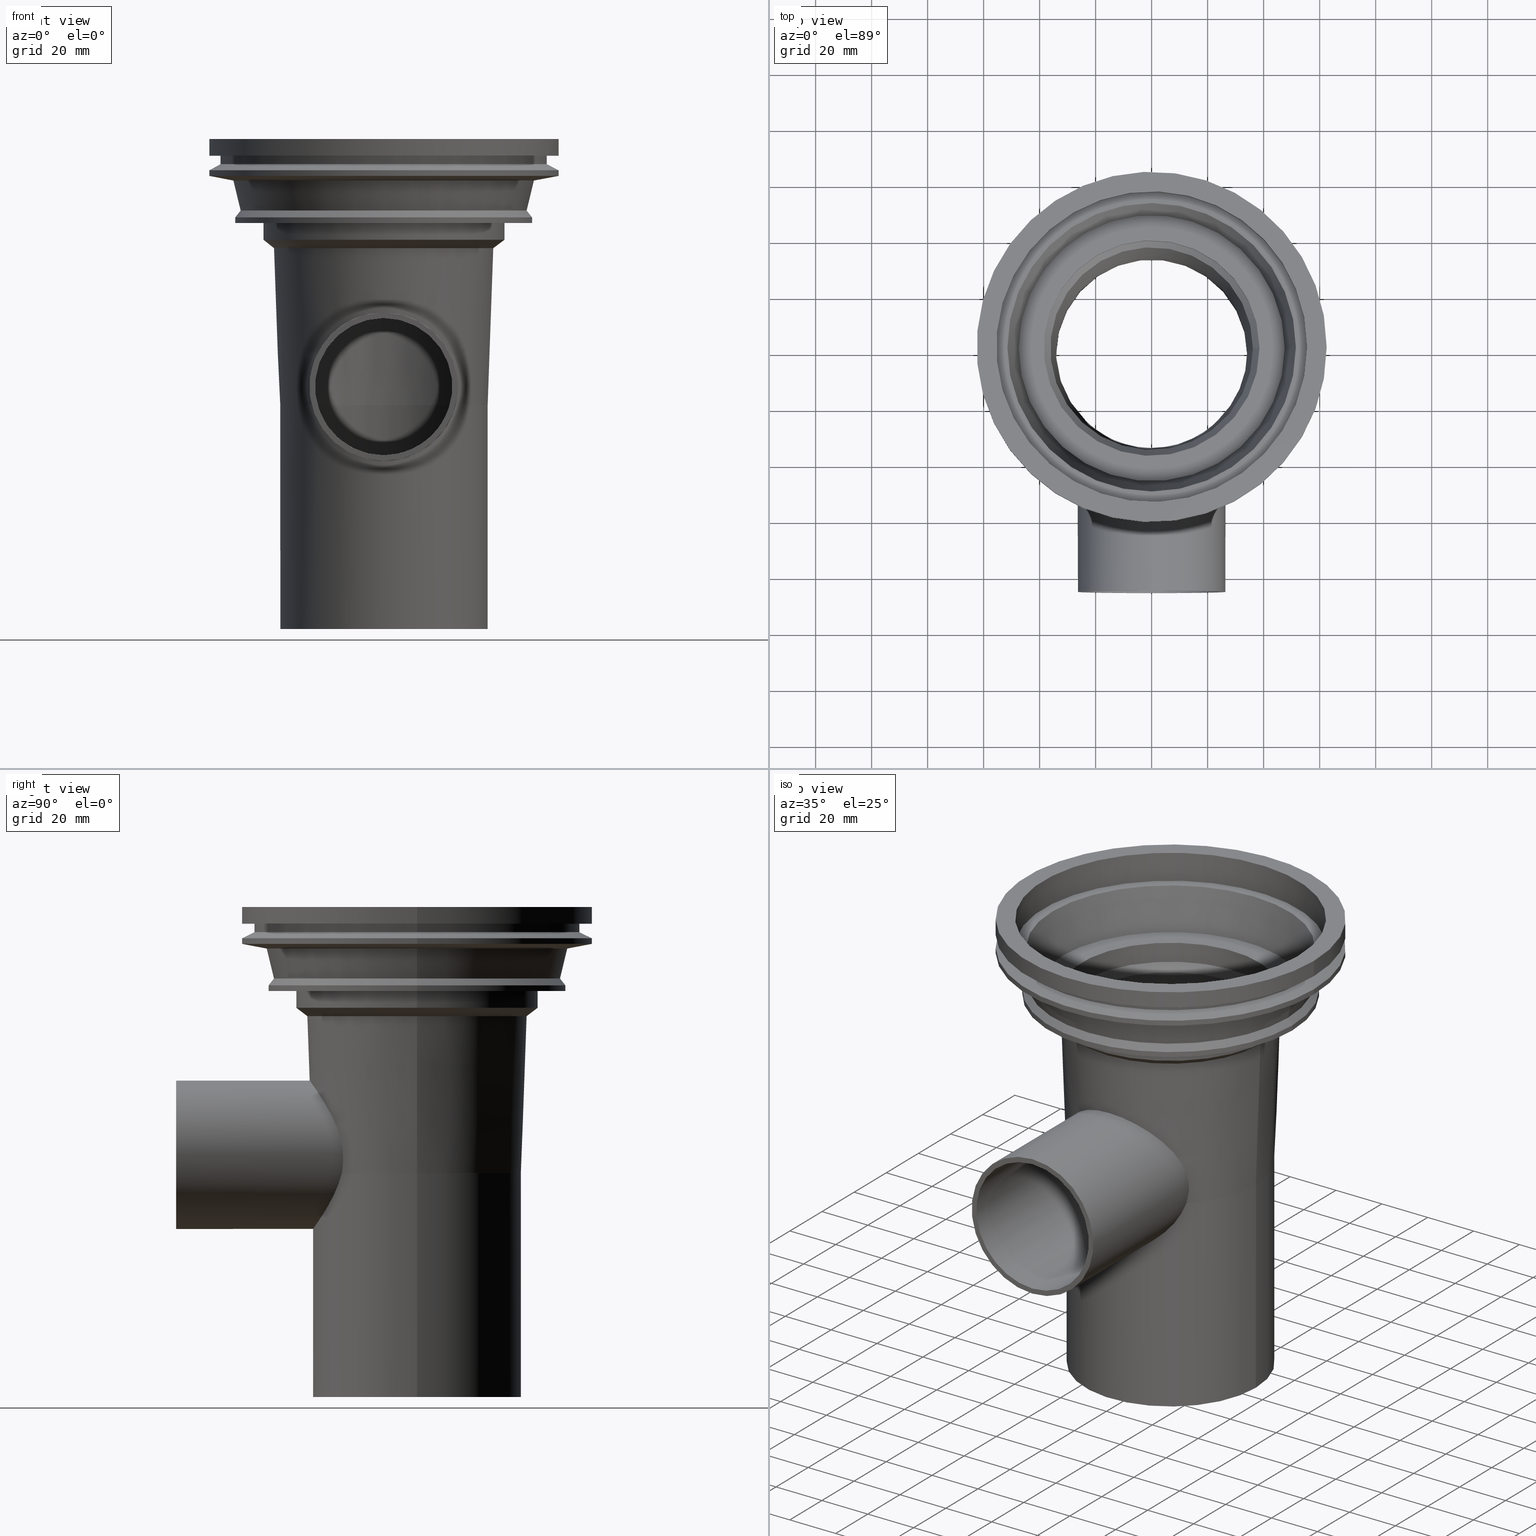
[diagram: canonical four-view strip — front | top / right | iso, engineering-drawing reading convention]
A machine part, canonical four-view strip (front | top / right | iso — engineering-drawing reading convention). The complete STEP part file that produces these views, byte-faithful:
ISO-10303-21;
HEADER;
/* Generated by software containing ST-Developer
 * from STEP Tools, Inc. (www.steptools.com) 
 */
/* OPTION: using custom renumber hook */

FILE_DESCRIPTION(
/* description */ ('STEP AP214'),
/* implementation_level */ '2;1');

FILE_NAME(
/* name */ '482088001(1)',
/* time_stamp */ '2022-12-23T08:20:45+01:00',
/* author */ ('License CC BY-ND 4.0'),
/* organization */ ('CADENAS'),
/* preprocessor_version */ 'ST-DEVELOPER v18.102',
/* originating_system */ 'PARTsolutions',
/* authorisation */ '  ');

FILE_SCHEMA (('AUTOMOTIVE_DESIGN {1 0 10303 214 3 1 1}'));
ENDSEC;

DATA;
#10=PROPERTY_DEFINITION_REPRESENTATION(#14,#12);
#11=PROPERTY_DEFINITION_REPRESENTATION(#15,#13);
#12=REPRESENTATION('',(#16),#684);
#13=REPRESENTATION('',(#17),#684);
#14=PROPERTY_DEFINITION('pmi validation property','',#689);
#15=PROPERTY_DEFINITION('pmi validation property','',#689);
#16=VALUE_REPRESENTATION_ITEM('number of annotations',COUNT_MEASURE(0.));
#17=VALUE_REPRESENTATION_ITEM('number of views',COUNT_MEASURE(0.));
#18=SHAPE_REPRESENTATION_RELATIONSHIP('','',#341,#19);
#19=ADVANCED_BREP_SHAPE_REPRESENTATION('',(#339),#684);
#20=PLANE('',#359);
#21=PLANE('',#363);
#22=PLANE('',#367);
#23=PLANE('',#371);
#24=PLANE('',#387);
#25=PLANE('',#392);
#26=PLANE('',#395);
#27=CONICAL_SURFACE('',#348,34.143,0.0357094364958043);
#28=CONICAL_SURFACE('',#350,39.143539336086,0.0357094364958043);
#29=CONICAL_SURFACE('',#355,36.1757550315357,0.643502895210308);
#30=CONICAL_SURFACE('',#361,47.4999181723626,0.237521857903909);
#31=CONICAL_SURFACE('',#375,58.252,1.09597950378984);
#32=CONICAL_SURFACE('',#379,62.5,1.3848314949949);
#33=CONICAL_SURFACE('',#381,53.6550744100284,0.237521857903908);
#34=CONICAL_SURFACE('',#383,51.0668891155031,0.665808203050796);
#35=CONICAL_SURFACE('',#391,43.145,0.927293431584588);
#36=CIRCLE('',#344,24.5);
#37=CIRCLE('',#346,34.143);
#38=CIRCLE('',#347,34.143);
#39=CIRCLE('',#349,36.1757550315357);
#40=CIRCLE('',#351,37.143);
#41=CIRCLE('',#352,39.143539336086);
#42=CIRCLE('',#354,37.143);
#43=CIRCLE('',#356,38.505);
#44=CIRCLE('',#358,38.505);
#45=CIRCLE('',#360,47.4999181723626);
#46=CIRCLE('',#362,51.5);
#47=CIRCLE('',#364,55.5);
#48=CIRCLE('',#366,55.5);
#49=CIRCLE('',#368,62.5);
#50=CIRCLE('',#370,62.5);
#51=CIRCLE('',#372,58.252);
#52=CIRCLE('',#374,58.252);
#53=CIRCLE('',#376,62.5);
#54=CIRCLE('',#378,62.5);
#55=CIRCLE('',#380,53.6550744100284);
#56=CIRCLE('',#382,51.0668891155031);
#57=CIRCLE('',#384,53.);
#58=CIRCLE('',#386,53.);
#59=CIRCLE('',#388,43.145);
#60=CIRCLE('',#390,43.145);
#61=CIRCLE('',#394,26.5);
#62=ORIENTED_EDGE('',*,*,#122,.T.);
#63=ORIENTED_EDGE('',*,*,#123,.T.);
#64=ORIENTED_EDGE('',*,*,#124,.F.);
#65=ORIENTED_EDGE('',*,*,#123,.F.);
#66=ORIENTED_EDGE('',*,*,#125,.T.);
#67=ORIENTED_EDGE('',*,*,#126,.F.);
#68=ORIENTED_EDGE('',*,*,#127,.T.);
#69=ORIENTED_EDGE('',*,*,#125,.F.);
#70=ORIENTED_EDGE('',*,*,#122,.F.);
#71=ORIENTED_EDGE('',*,*,#128,.F.);
#72=ORIENTED_EDGE('',*,*,#129,.T.);
#73=ORIENTED_EDGE('',*,*,#130,.F.);
#74=ORIENTED_EDGE('',*,*,#131,.T.);
#75=ORIENTED_EDGE('',*,*,#132,.F.);
#76=ORIENTED_EDGE('',*,*,#129,.F.);
#77=ORIENTED_EDGE('',*,*,#133,.T.);
#78=ORIENTED_EDGE('',*,*,#127,.F.);
#79=ORIENTED_EDGE('',*,*,#134,.T.);
#80=ORIENTED_EDGE('',*,*,#133,.F.);
#81=ORIENTED_EDGE('',*,*,#135,.T.);
#82=ORIENTED_EDGE('',*,*,#134,.F.);
#83=ORIENTED_EDGE('',*,*,#136,.T.);
#84=ORIENTED_EDGE('',*,*,#135,.F.);
#85=ORIENTED_EDGE('',*,*,#137,.T.);
#86=ORIENTED_EDGE('',*,*,#136,.F.);
#87=ORIENTED_EDGE('',*,*,#138,.T.);
#88=ORIENTED_EDGE('',*,*,#137,.F.);
#89=ORIENTED_EDGE('',*,*,#139,.T.);
#90=ORIENTED_EDGE('',*,*,#138,.F.);
#91=ORIENTED_EDGE('',*,*,#140,.T.);
#92=ORIENTED_EDGE('',*,*,#139,.F.);
#93=ORIENTED_EDGE('',*,*,#141,.T.);
#94=ORIENTED_EDGE('',*,*,#140,.F.);
#95=ORIENTED_EDGE('',*,*,#142,.T.);
#96=ORIENTED_EDGE('',*,*,#141,.F.);
#97=ORIENTED_EDGE('',*,*,#143,.T.);
#98=ORIENTED_EDGE('',*,*,#142,.F.);
#99=ORIENTED_EDGE('',*,*,#144,.T.);
#100=ORIENTED_EDGE('',*,*,#143,.F.);
#101=ORIENTED_EDGE('',*,*,#145,.T.);
#102=ORIENTED_EDGE('',*,*,#144,.F.);
#103=ORIENTED_EDGE('',*,*,#146,.T.);
#104=ORIENTED_EDGE('',*,*,#145,.F.);
#105=ORIENTED_EDGE('',*,*,#147,.T.);
#106=ORIENTED_EDGE('',*,*,#146,.F.);
#107=ORIENTED_EDGE('',*,*,#148,.T.);
#108=ORIENTED_EDGE('',*,*,#147,.F.);
#109=ORIENTED_EDGE('',*,*,#149,.T.);
#110=ORIENTED_EDGE('',*,*,#148,.F.);
#111=ORIENTED_EDGE('',*,*,#150,.T.);
#112=ORIENTED_EDGE('',*,*,#149,.F.);
#113=ORIENTED_EDGE('',*,*,#130,.T.);
#114=ORIENTED_EDGE('',*,*,#150,.F.);
#115=ORIENTED_EDGE('',*,*,#126,.T.);
#116=ORIENTED_EDGE('',*,*,#131,.F.);
#117=ORIENTED_EDGE('',*,*,#151,.T.);
#118=ORIENTED_EDGE('',*,*,#132,.T.);
#119=ORIENTED_EDGE('',*,*,#128,.T.);
#120=ORIENTED_EDGE('',*,*,#124,.T.);
#121=ORIENTED_EDGE('',*,*,#151,.F.);
#122=EDGE_CURVE('',#152,#153,#180,.T.);
#123=EDGE_CURVE('',#153,#152,#181,.T.);
#124=EDGE_CURVE('',#154,#154,#36,.T.);
#125=EDGE_CURVE('',#153,#152,#37,.T.);
#126=EDGE_CURVE('',#155,#155,#38,.T.);
#127=EDGE_CURVE('',#156,#156,#39,.T.);
#128=EDGE_CURVE('',#157,#158,#182,.T.);
#129=EDGE_CURVE('',#157,#158,#40,.T.);
#130=EDGE_CURVE('',#159,#159,#41,.T.);
#131=EDGE_CURVE('',#160,#160,#42,.T.);
#132=EDGE_CURVE('',#158,#157,#183,.T.);
#133=EDGE_CURVE('',#161,#161,#43,.T.);
#134=EDGE_CURVE('',#162,#162,#44,.T.);
#135=EDGE_CURVE('',#163,#163,#45,.T.);
#136=EDGE_CURVE('',#164,#164,#46,.T.);
#137=EDGE_CURVE('',#165,#165,#47,.T.);
#138=EDGE_CURVE('',#166,#166,#48,.T.);
#139=EDGE_CURVE('',#167,#167,#49,.T.);
#140=EDGE_CURVE('',#168,#168,#50,.T.);
#141=EDGE_CURVE('',#169,#169,#51,.T.);
#142=EDGE_CURVE('',#170,#170,#52,.T.);
#143=EDGE_CURVE('',#171,#171,#53,.T.);
#144=EDGE_CURVE('',#172,#172,#54,.T.);
#145=EDGE_CURVE('',#173,#173,#55,.T.);
#146=EDGE_CURVE('',#174,#174,#56,.T.);
#147=EDGE_CURVE('',#175,#175,#57,.T.);
#148=EDGE_CURVE('',#176,#176,#58,.T.);
#149=EDGE_CURVE('',#177,#177,#59,.T.);
#150=EDGE_CURVE('',#178,#178,#60,.T.);
#151=EDGE_CURVE('',#179,#179,#61,.T.);
#152=VERTEX_POINT('',#535);
#153=VERTEX_POINT('',#536);
#154=VERTEX_POINT('',#559);
#155=VERTEX_POINT('',#563);
#156=VERTEX_POINT('',#566);
#157=VERTEX_POINT('',#595);
#158=VERTEX_POINT('',#596);
#159=VERTEX_POINT('',#599);
#160=VERTEX_POINT('',#602);
#161=VERTEX_POINT('',#625);
#162=VERTEX_POINT('',#628);
#163=VERTEX_POINT('',#631);
#164=VERTEX_POINT('',#634);
#165=VERTEX_POINT('',#637);
#166=VERTEX_POINT('',#640);
#167=VERTEX_POINT('',#643);
#168=VERTEX_POINT('',#646);
#169=VERTEX_POINT('',#649);
#170=VERTEX_POINT('',#652);
#171=VERTEX_POINT('',#655);
#172=VERTEX_POINT('',#658);
#173=VERTEX_POINT('',#661);
#174=VERTEX_POINT('',#664);
#175=VERTEX_POINT('',#667);
#176=VERTEX_POINT('',#670);
#177=VERTEX_POINT('',#673);
#178=VERTEX_POINT('',#676);
#179=VERTEX_POINT('',#681);
#180=B_SPLINE_CURVE_WITH_KNOTS('',3,(#506,#507,#508,#509,#510,#511,#512,
#513,#514,#515,#516,#517,#518,#519,#520,#521,#522,#523,#524,#525,#526,#527,
#528,#529,#530,#531,#532,#533,#534),.UNSPECIFIED.,.F.,.F.,(4,1,1,1,1,1,
1,1,1,1,1,1,1,1,1,1,1,1,1,1,1,1,1,1,1,1,4),(2.08824207813058E-7,0.00584334820832428,
0.00876491790038252,0.0116864875924408,0.014608057284499,0.0175296269765572,
0.0233727663606737,0.0262943360527319,0.0292159057447902,0.0350590451289066,
0.0379806148209649,0.0409021845130231,0.0438237542050813,0.0467453238971396,
0.0496668935891978,0.052588463281256,0.0584316026653725,0.0613531723574307,
0.064274742049489,0.0701178814336055,0.0730394511256637,0.0759610208177219,
0.0818041602018384,0.0847257298938966,0.0876472995859549,0.0905688692780131,
0.0934904389700713),.UNSPECIFIED.);
#181=B_SPLINE_CURVE_WITH_KNOTS('',3,(#537,#538,#539,#540,#541,#542,#543,
#544,#545,#546,#547,#548,#549,#550,#551,#552,#553,#554,#555,#556,#557),
 .UNSPECIFIED.,.F.,.F.,(4,1,1,1,1,1,1,1,1,1,1,1,1,1,1,1,1,1,4),(0.,0.0041583145516762,
0.00831662910335241,0.0124749436550286,0.0166332582067048,0.020791572758381,
0.0249498873100572,0.0270290445858953,0.0291082018617334,0.0332665164134096,
0.0353456736892477,0.0374248309650858,0.041583145516762,0.0457414600684383,
0.0498997746201145,0.0540580891717907,0.0582164037234669,0.0623747182751431,
0.0665330328268193),.UNSPECIFIED.);
#182=B_SPLINE_CURVE_WITH_KNOTS('',3,(#568,#569,#570,#571,#572,#573,#574,
#575,#576,#577,#578,#579,#580,#581,#582,#583,#584,#585,#586,#587,#588,#589,
#590,#591,#592,#593,#594),.UNSPECIFIED.,.F.,.F.,(4,1,1,1,1,1,1,1,1,1,1,
1,1,1,1,1,1,1,1,1,1,1,1,1,4),(2.06801865521496E-7,0.00624696653384797,0.0093703463998392,
0.0124937262658304,0.0156171061318216,0.0187404859978129,0.0249872457297953,
0.0312340054617778,0.034357385327769,0.0374807651937602,0.0437275249257427,
0.0468509047917339,0.0499742846577251,0.0562210443897076,0.0593444242556988,
0.06246780412169,0.0655911839876813,0.0687145638536725,0.0749613235856549,
0.0812080833176374,0.0843314631836286,0.0874548430496198,0.0905782229156111,
0.0937016027816023,0.0999483625135847),.UNSPECIFIED.);
#183=B_SPLINE_CURVE_WITH_KNOTS('',3,(#603,#604,#605,#606,#607,#608,#609,
#610,#611,#612,#613,#614,#615,#616,#617,#618,#619,#620,#621,#622),
 .UNSPECIFIED.,.F.,.F.,(4,1,1,1,1,1,1,1,1,1,1,1,1,1,1,1,1,4),(0.0497166951258942,
0.0542839167216009,0.0588511383173076,0.0634183599130143,0.067985581508721,
0.0725528031044277,0.0771200247001343,0.081687246295841,0.0862544678915477,
0.0908216894872544,0.0931053002851077,0.0953889110829611,0.0999561326786678,
0.104523354274374,0.109090575870081,0.113657797465788,0.118225019061494,
0.122792240657201),.UNSPECIFIED.);
#184=EDGE_LOOP('',(#62,#63));
#185=EDGE_LOOP('',(#64));
#186=EDGE_LOOP('',(#65,#66));
#187=EDGE_LOOP('',(#67));
#188=EDGE_LOOP('',(#68));
#189=EDGE_LOOP('',(#69,#70));
#190=EDGE_LOOP('',(#71,#72));
#191=EDGE_LOOP('',(#73));
#192=EDGE_LOOP('',(#74));
#193=EDGE_LOOP('',(#75,#76));
#194=EDGE_LOOP('',(#77));
#195=EDGE_LOOP('',(#78));
#196=EDGE_LOOP('',(#79));
#197=EDGE_LOOP('',(#80));
#198=EDGE_LOOP('',(#81));
#199=EDGE_LOOP('',(#82));
#200=EDGE_LOOP('',(#83));
#201=EDGE_LOOP('',(#84));
#202=EDGE_LOOP('',(#85));
#203=EDGE_LOOP('',(#86));
#204=EDGE_LOOP('',(#87));
#205=EDGE_LOOP('',(#88));
#206=EDGE_LOOP('',(#89));
#207=EDGE_LOOP('',(#90));
#208=EDGE_LOOP('',(#91));
#209=EDGE_LOOP('',(#92));
#210=EDGE_LOOP('',(#93));
#211=EDGE_LOOP('',(#94));
#212=EDGE_LOOP('',(#95));
#213=EDGE_LOOP('',(#96));
#214=EDGE_LOOP('',(#97));
#215=EDGE_LOOP('',(#98));
#216=EDGE_LOOP('',(#99));
#217=EDGE_LOOP('',(#100));
#218=EDGE_LOOP('',(#101));
#219=EDGE_LOOP('',(#102));
#220=EDGE_LOOP('',(#103));
#221=EDGE_LOOP('',(#104));
#222=EDGE_LOOP('',(#105));
#223=EDGE_LOOP('',(#106));
#224=EDGE_LOOP('',(#107));
#225=EDGE_LOOP('',(#108));
#226=EDGE_LOOP('',(#109));
#227=EDGE_LOOP('',(#110));
#228=EDGE_LOOP('',(#111));
#229=EDGE_LOOP('',(#112));
#230=EDGE_LOOP('',(#113));
#231=EDGE_LOOP('',(#114));
#232=EDGE_LOOP('',(#115));
#233=EDGE_LOOP('',(#116));
#234=EDGE_LOOP('',(#117));
#235=EDGE_LOOP('',(#118,#119));
#236=EDGE_LOOP('',(#120));
#237=EDGE_LOOP('',(#121));
#238=FACE_BOUND('',#184,.T.);
#239=FACE_BOUND('',#185,.T.);
#240=FACE_BOUND('',#186,.T.);
#241=FACE_BOUND('',#187,.T.);
#242=FACE_BOUND('',#188,.T.);
#243=FACE_BOUND('',#189,.T.);
#244=FACE_BOUND('',#190,.T.);
#245=FACE_BOUND('',#191,.T.);
#246=FACE_BOUND('',#192,.T.);
#247=FACE_BOUND('',#193,.T.);
#248=FACE_BOUND('',#194,.T.);
#249=FACE_BOUND('',#195,.T.);
#250=FACE_BOUND('',#196,.T.);
#251=FACE_BOUND('',#197,.T.);
#252=FACE_BOUND('',#198,.T.);
#253=FACE_BOUND('',#199,.T.);
#254=FACE_BOUND('',#200,.T.);
#255=FACE_BOUND('',#201,.T.);
#256=FACE_BOUND('',#202,.T.);
#257=FACE_BOUND('',#203,.T.);
#258=FACE_BOUND('',#204,.T.);
#259=FACE_BOUND('',#205,.T.);
#260=FACE_BOUND('',#206,.T.);
#261=FACE_BOUND('',#207,.T.);
#262=FACE_BOUND('',#208,.T.);
#263=FACE_BOUND('',#209,.T.);
#264=FACE_BOUND('',#210,.T.);
#265=FACE_BOUND('',#211,.T.);
#266=FACE_BOUND('',#212,.T.);
#267=FACE_BOUND('',#213,.T.);
#268=FACE_BOUND('',#214,.T.);
#269=FACE_BOUND('',#215,.T.);
#270=FACE_BOUND('',#216,.T.);
#271=FACE_BOUND('',#217,.T.);
#272=FACE_BOUND('',#218,.T.);
#273=FACE_BOUND('',#219,.T.);
#274=FACE_BOUND('',#220,.T.);
#275=FACE_BOUND('',#221,.T.);
#276=FACE_BOUND('',#222,.T.);
#277=FACE_BOUND('',#223,.T.);
#278=FACE_BOUND('',#224,.T.);
#279=FACE_BOUND('',#225,.T.);
#280=FACE_BOUND('',#226,.T.);
#281=FACE_BOUND('',#227,.T.);
#282=FACE_BOUND('',#228,.T.);
#283=FACE_BOUND('',#229,.T.);
#284=FACE_BOUND('',#230,.T.);
#285=FACE_BOUND('',#231,.T.);
#286=FACE_BOUND('',#232,.T.);
#287=FACE_BOUND('',#233,.T.);
#288=FACE_BOUND('',#234,.T.);
#289=FACE_BOUND('',#235,.T.);
#290=FACE_BOUND('',#236,.T.);
#291=FACE_BOUND('',#237,.T.);
#292=CYLINDRICAL_SURFACE('',#343,24.5);
#293=CYLINDRICAL_SURFACE('',#345,34.143);
#294=CYLINDRICAL_SURFACE('',#353,37.143);
#295=CYLINDRICAL_SURFACE('',#357,38.505);
#296=CYLINDRICAL_SURFACE('',#365,55.5);
#297=CYLINDRICAL_SURFACE('',#369,62.5);
#298=CYLINDRICAL_SURFACE('',#373,58.252);
#299=CYLINDRICAL_SURFACE('',#377,62.5);
#300=CYLINDRICAL_SURFACE('',#385,53.);
#301=CYLINDRICAL_SURFACE('',#389,43.145);
#302=CYLINDRICAL_SURFACE('',#393,26.5);
#303=ADVANCED_FACE('',(#238,#239),#292,.F.);
#304=ADVANCED_FACE('',(#240,#241),#293,.F.);
#305=ADVANCED_FACE('',(#242,#243),#27,.F.);
#306=ADVANCED_FACE('',(#244,#245),#28,.T.);
#307=ADVANCED_FACE('',(#246,#247),#294,.T.);
#308=ADVANCED_FACE('',(#248,#249),#29,.F.);
#309=ADVANCED_FACE('',(#250,#251),#295,.F.);
#310=ADVANCED_FACE('',(#252,#253),#20,.T.);
#311=ADVANCED_FACE('',(#254,#255),#30,.F.);
#312=ADVANCED_FACE('',(#256,#257),#21,.T.);
#313=ADVANCED_FACE('',(#258,#259),#296,.F.);
#314=ADVANCED_FACE('',(#260,#261),#22,.T.);
#315=ADVANCED_FACE('',(#262,#263),#297,.T.);
#316=ADVANCED_FACE('',(#264,#265),#23,.T.);
#317=ADVANCED_FACE('',(#266,#267),#298,.T.);
#318=ADVANCED_FACE('',(#268,#269),#31,.T.);
#319=ADVANCED_FACE('',(#270,#271),#299,.T.);
#320=ADVANCED_FACE('',(#272,#273),#32,.T.);
#321=ADVANCED_FACE('',(#274,#275),#33,.T.);
#322=ADVANCED_FACE('',(#276,#277),#34,.T.);
#323=ADVANCED_FACE('',(#278,#279),#300,.T.);
#324=ADVANCED_FACE('',(#280,#281),#24,.T.);
#325=ADVANCED_FACE('',(#282,#283),#301,.T.);
#326=ADVANCED_FACE('',(#284,#285),#35,.T.);
#327=ADVANCED_FACE('',(#286,#287),#25,.T.);
#328=ADVANCED_FACE('',(#288,#289),#302,.T.);
#329=ADVANCED_FACE('',(#290,#291),#26,.T.);
#330=CLOSED_SHELL('',(#303,#304,#305,#306,#307,#308,#309,#310,#311,#312,
#313,#314,#315,#316,#317,#318,#319,#320,#321,#322,#323,#324,#325,#326,#327,
#328,#329));
#331=STYLED_ITEM('',(#332),#339);
#332=PRESENTATION_STYLE_ASSIGNMENT((#333));
#333=SURFACE_STYLE_USAGE(.BOTH.,#334);
#334=SURFACE_SIDE_STYLE('',(#335));
#335=SURFACE_STYLE_FILL_AREA(#336);
#336=FILL_AREA_STYLE('',(#337));
#337=FILL_AREA_STYLE_COLOUR('',#338);
#338=COLOUR_RGB('',0.689999997615814,0.689999997615814,0.689999997615814);
#339=MANIFOLD_SOLID_BREP('482088001(1)',#330);
#340=SHAPE_DEFINITION_REPRESENTATION(#689,#341);
#341=SHAPE_REPRESENTATION('482088001(1)',(#342),#684);
#342=AXIS2_PLACEMENT_3D('',#504,#396,#397);
#343=AXIS2_PLACEMENT_3D('',#505,#398,#399);
#344=AXIS2_PLACEMENT_3D('',#558,#400,#401);
#345=AXIS2_PLACEMENT_3D('',#560,#402,#403);
#346=AXIS2_PLACEMENT_3D('',#561,#404,#405);
#347=AXIS2_PLACEMENT_3D('',#562,#406,#407);
#348=AXIS2_PLACEMENT_3D('',#564,#408,#409);
#349=AXIS2_PLACEMENT_3D('',#565,#410,#411);
#350=AXIS2_PLACEMENT_3D('',#567,#412,#413);
#351=AXIS2_PLACEMENT_3D('',#597,#414,#415);
#352=AXIS2_PLACEMENT_3D('',#598,#416,#417);
#353=AXIS2_PLACEMENT_3D('',#600,#418,#419);
#354=AXIS2_PLACEMENT_3D('',#601,#420,#421);
#355=AXIS2_PLACEMENT_3D('',#623,#422,#423);
#356=AXIS2_PLACEMENT_3D('',#624,#424,#425);
#357=AXIS2_PLACEMENT_3D('',#626,#426,#427);
#358=AXIS2_PLACEMENT_3D('',#627,#428,#429);
#359=AXIS2_PLACEMENT_3D('',#629,#430,#431);
#360=AXIS2_PLACEMENT_3D('',#630,#432,#433);
#361=AXIS2_PLACEMENT_3D('',#632,#434,#435);
#362=AXIS2_PLACEMENT_3D('',#633,#436,#437);
#363=AXIS2_PLACEMENT_3D('',#635,#438,#439);
#364=AXIS2_PLACEMENT_3D('',#636,#440,#441);
#365=AXIS2_PLACEMENT_3D('',#638,#442,#443);
#366=AXIS2_PLACEMENT_3D('',#639,#444,#445);
#367=AXIS2_PLACEMENT_3D('',#641,#446,#447);
#368=AXIS2_PLACEMENT_3D('',#642,#448,#449);
#369=AXIS2_PLACEMENT_3D('',#644,#450,#451);
#370=AXIS2_PLACEMENT_3D('',#645,#452,#453);
#371=AXIS2_PLACEMENT_3D('',#647,#454,#455);
#372=AXIS2_PLACEMENT_3D('',#648,#456,#457);
#373=AXIS2_PLACEMENT_3D('',#650,#458,#459);
#374=AXIS2_PLACEMENT_3D('',#651,#460,#461);
#375=AXIS2_PLACEMENT_3D('',#653,#462,#463);
#376=AXIS2_PLACEMENT_3D('',#654,#464,#465);
#377=AXIS2_PLACEMENT_3D('',#656,#466,#467);
#378=AXIS2_PLACEMENT_3D('',#657,#468,#469);
#379=AXIS2_PLACEMENT_3D('',#659,#470,#471);
#380=AXIS2_PLACEMENT_3D('',#660,#472,#473);
#381=AXIS2_PLACEMENT_3D('',#662,#474,#475);
#382=AXIS2_PLACEMENT_3D('',#663,#476,#477);
#383=AXIS2_PLACEMENT_3D('',#665,#478,#479);
#384=AXIS2_PLACEMENT_3D('',#666,#480,#481);
#385=AXIS2_PLACEMENT_3D('',#668,#482,#483);
#386=AXIS2_PLACEMENT_3D('',#669,#484,#485);
#387=AXIS2_PLACEMENT_3D('',#671,#486,#487);
#388=AXIS2_PLACEMENT_3D('',#672,#488,#489);
#389=AXIS2_PLACEMENT_3D('',#674,#490,#491);
#390=AXIS2_PLACEMENT_3D('',#675,#492,#493);
#391=AXIS2_PLACEMENT_3D('',#677,#494,#495);
#392=AXIS2_PLACEMENT_3D('',#678,#496,#497);
#393=AXIS2_PLACEMENT_3D('',#679,#498,#499);
#394=AXIS2_PLACEMENT_3D('',#680,#500,#501);
#395=AXIS2_PLACEMENT_3D('',#682,#502,#503);
#396=DIRECTION('',(0.,0.,1.));
#397=DIRECTION('',(1.,0.,0.));
#398=DIRECTION('',(0.,1.,0.));
#399=DIRECTION('',(0.,0.,1.));
#400=DIRECTION('',(0.,1.,0.));
#401=DIRECTION('',(0.,0.,1.));
#402=DIRECTION('',(0.,0.,1.));
#403=DIRECTION('',(1.,0.,0.));
#404=DIRECTION('',(0.,0.,1.));
#405=DIRECTION('',(1.,0.,0.));
#406=DIRECTION('',(0.,0.,1.));
#407=DIRECTION('',(1.,0.,0.));
#408=DIRECTION('',(0.,0.,1.));
#409=DIRECTION('',(1.,0.,0.));
#410=DIRECTION('',(0.,0.,1.));
#411=DIRECTION('',(1.,0.,0.));
#412=DIRECTION('',(0.,0.,1.));
#413=DIRECTION('',(1.,0.,0.));
#414=DIRECTION('',(0.,0.,1.));
#415=DIRECTION('',(1.,0.,0.));
#416=DIRECTION('',(0.,0.,1.));
#417=DIRECTION('',(1.,0.,0.));
#418=DIRECTION('',(0.,0.,1.));
#419=DIRECTION('',(1.,0.,0.));
#420=DIRECTION('',(0.,0.,1.));
#421=DIRECTION('',(1.,0.,0.));
#422=DIRECTION('',(0.,0.,1.));
#423=DIRECTION('',(1.,0.,0.));
#424=DIRECTION('',(0.,0.,1.));
#425=DIRECTION('',(1.,0.,0.));
#426=DIRECTION('',(0.,0.,1.));
#427=DIRECTION('',(1.,0.,0.));
#428=DIRECTION('',(0.,0.,1.));
#429=DIRECTION('',(1.,0.,0.));
#430=DIRECTION('',(0.,0.,1.));
#431=DIRECTION('',(1.,0.,0.));
#432=DIRECTION('',(0.,0.,1.));
#433=DIRECTION('',(1.,0.,0.));
#434=DIRECTION('',(0.,0.,1.));
#435=DIRECTION('',(1.,0.,0.));
#436=DIRECTION('',(0.,0.,1.));
#437=DIRECTION('',(1.,0.,0.));
#438=DIRECTION('',(0.,0.,1.));
#439=DIRECTION('',(1.,0.,0.));
#440=DIRECTION('',(0.,0.,1.));
#441=DIRECTION('',(1.,0.,0.));
#442=DIRECTION('',(0.,0.,1.));
#443=DIRECTION('',(1.,0.,0.));
#444=DIRECTION('',(0.,0.,1.));
#445=DIRECTION('',(1.,0.,0.));
#446=DIRECTION('',(0.,0.,1.));
#447=DIRECTION('',(1.,0.,0.));
#448=DIRECTION('',(0.,0.,1.));
#449=DIRECTION('',(1.,0.,0.));
#450=DIRECTION('',(0.,0.,1.));
#451=DIRECTION('',(1.,0.,0.));
#452=DIRECTION('',(0.,0.,1.));
#453=DIRECTION('',(1.,0.,0.));
#454=DIRECTION('',(0.,0.,-1.));
#455=DIRECTION('',(-1.,0.,0.));
#456=DIRECTION('',(0.,0.,1.));
#457=DIRECTION('',(1.,0.,0.));
#458=DIRECTION('',(0.,0.,1.));
#459=DIRECTION('',(1.,0.,0.));
#460=DIRECTION('',(0.,0.,1.));
#461=DIRECTION('',(1.,0.,0.));
#462=DIRECTION('',(0.,0.,-1.));
#463=DIRECTION('',(-1.,0.,0.));
#464=DIRECTION('',(0.,0.,1.));
#465=DIRECTION('',(1.,0.,0.));
#466=DIRECTION('',(0.,0.,1.));
#467=DIRECTION('',(1.,0.,0.));
#468=DIRECTION('',(0.,0.,1.));
#469=DIRECTION('',(1.,0.,0.));
#470=DIRECTION('',(0.,0.,1.));
#471=DIRECTION('',(1.,0.,0.));
#472=DIRECTION('',(0.,0.,1.));
#473=DIRECTION('',(1.,0.,0.));
#474=DIRECTION('',(0.,0.,1.));
#475=DIRECTION('',(1.,0.,0.));
#476=DIRECTION('',(0.,0.,1.));
#477=DIRECTION('',(1.,0.,0.));
#478=DIRECTION('',(0.,0.,-1.));
#479=DIRECTION('',(-1.,0.,0.));
#480=DIRECTION('',(0.,0.,1.));
#481=DIRECTION('',(1.,0.,0.));
#482=DIRECTION('',(0.,0.,1.));
#483=DIRECTION('',(1.,0.,0.));
#484=DIRECTION('',(0.,0.,1.));
#485=DIRECTION('',(1.,0.,0.));
#486=DIRECTION('',(0.,0.,-1.));
#487=DIRECTION('',(-1.,0.,0.));
#488=DIRECTION('',(0.,0.,1.));
#489=DIRECTION('',(1.,0.,0.));
#490=DIRECTION('',(0.,0.,1.));
#491=DIRECTION('',(1.,0.,0.));
#492=DIRECTION('',(0.,0.,1.));
#493=DIRECTION('',(1.,0.,0.));
#494=DIRECTION('',(0.,0.,1.));
#495=DIRECTION('',(1.,0.,0.));
#496=DIRECTION('',(0.,0.,-1.));
#497=DIRECTION('',(-1.,0.,0.));
#498=DIRECTION('',(0.,1.,0.));
#499=DIRECTION('',(0.,0.,1.));
#500=DIRECTION('',(0.,1.,0.));
#501=DIRECTION('',(0.,0.,1.));
#502=DIRECTION('',(0.,-1.,0.));
#503=DIRECTION('',(0.,0.,-1.));
#504=CARTESIAN_POINT('',(0.,0.,0.));
#505=CARTESIAN_POINT('',(0.,-20.,-88.5));
#506=CARTESIAN_POINT('',(-23.6220236220355,-24.6524734864475,-94.9999999999996));
#507=CARTESIAN_POINT('',(-24.1353230918689,-24.2529255524038,-93.1345888920638));
#508=CARTESIAN_POINT('',(-24.5768480491504,-23.9437577479033,-90.2406856937661));
#509=CARTESIAN_POINT('',(-24.4591190572159,-24.266913583681,-86.3011511830542));
#510=CARTESIAN_POINT('',(-24.0332903827029,-24.8342150542807,-83.4625639398011));
#511=CARTESIAN_POINT('',(-23.2863618041603,-25.6735427153631,-80.7166123166587));
#512=CARTESIAN_POINT('',(-21.938495784923,-27.0145055089608,-77.3328238384925));
#513=CARTESIAN_POINT('',(-20.0527542667314,-28.602450273817,-74.2278590746328));
#514=CARTESIAN_POINT('',(-17.7381497788545,-30.1774282937036,-71.5287978442168));
#515=CARTESIAN_POINT('',(-15.0885592357347,-31.7260832934169,-69.0490863407522));
#516=CARTESIAN_POINT('',(-12.0627199962117,-33.0884058587154,-67.0356642091545));
#517=CARTESIAN_POINT('',(-8.63452239734272,-34.1587057988114,-65.5120189071933));
#518=CARTESIAN_POINT('',(-5.86159850652869,-34.7750139960671,-64.6531125738945));
#519=CARTESIAN_POINT('',(-3.01996290398081,-35.1569738619573,-64.1277522840743));
#520=CARTESIAN_POINT('',(-0.0491315078073618,-35.2937144863481,-63.9409195948453));
#521=CARTESIAN_POINT('',(2.85881213173204,-35.1706300323081,-64.1090044824123));
#522=CARTESIAN_POINT('',(6.71521555851582,-34.6700492046334,-64.7975416994858));
#523=CARTESIAN_POINT('',(10.2926613566155,-33.7159973079495,-66.1288162583788));
#524=CARTESIAN_POINT('',(13.5204570099022,-32.4319924902202,-68.0065068907632));
#525=CARTESIAN_POINT('',(16.4362301160349,-31.0061397350416,-70.1738852131606));
#526=CARTESIAN_POINT('',(18.9478178782501,-29.4046522251649,-72.7906534003183));
#527=CARTESIAN_POINT('',(20.9633337814773,-27.8366334824085,-75.7243380661876));
#528=CARTESIAN_POINT('',(22.685930070608,-26.3186770126668,-78.9386592754314));
#529=CARTESIAN_POINT('',(23.8752156639945,-25.0423452019613,-82.4444571525247));
#530=CARTESIAN_POINT('',(24.4581656508045,-24.2685175251855,-86.2882442467823));
#531=CARTESIAN_POINT('',(24.549124157196,-24.0260795207017,-89.2038797181615));
#532=CARTESIAN_POINT('',(24.2831382824069,-24.1466358745267,-92.1720720040628));
#533=CARTESIAN_POINT('',(23.8791682334457,-24.4523143117794,-94.065495986921));
#534=CARTESIAN_POINT('',(23.6220236220355,-24.6524734864475,-94.9999999999996));
#535=CARTESIAN_POINT('',(-23.6220236220355,-24.6524734864475,-94.9999999999996));
#536=CARTESIAN_POINT('',(23.6220236220355,-24.6524734864475,-94.9999999999996));
#537=CARTESIAN_POINT('',(23.6220236220355,-24.6524734864475,-94.9999999999996));
#538=CARTESIAN_POINT('',(23.2592932239614,-25.0000421000573,-96.3182193894979));
#539=CARTESIAN_POINT('',(22.3427667854949,-25.8478162893463,-98.8015183341747));
#540=CARTESIAN_POINT('',(20.4395120691364,-27.393569640576,-102.19285583874));
#541=CARTESIAN_POINT('',(18.0348395443182,-29.0457805461801,-105.230981651231));
#542=CARTESIAN_POINT('',(15.1994904460312,-30.637616227889,-107.847335951139));
#543=CARTESIAN_POINT('',(11.8910125234218,-32.0773502607889,-110.043798628444));
#544=CARTESIAN_POINT('',(8.84476851512633,-33.0247254425979,-111.419575747617));
#545=CARTESIAN_POINT('',(6.20331565376647,-33.5952757158046,-112.231725461647));
#546=CARTESIAN_POINT('',(3.52933449385869,-34.007567002659,-112.811893719158));
#547=CARTESIAN_POINT('',(0.756152457997147,-34.1857130670098,-113.059393256186));
#548=CARTESIAN_POINT('',(-2.06076554507306,-34.1020079835632,-112.942945670097));
#549=CARTESIAN_POINT('',(-4.80047730277615,-33.8529169003595,-112.594856082476));
#550=CARTESIAN_POINT('',(-8.17099488318953,-33.2310438228365,-111.718657985003));
#551=CARTESIAN_POINT('',(-11.8471780744575,-32.0941231003322,-110.068806804554));
#552=CARTESIAN_POINT('',(-15.1667094303051,-30.6541972469583,-107.873387575098));
#553=CARTESIAN_POINT('',(-18.0136529740692,-29.0594374003061,-105.255349603117));
#554=CARTESIAN_POINT('',(-20.4263049913364,-27.4031727395952,-102.210101745841));
#555=CARTESIAN_POINT('',(-22.3225884634718,-25.8656541189181,-98.8486251528904));
#556=CARTESIAN_POINT('',(-23.2594563611304,-24.9998857818662,-96.3176265233346));
#557=CARTESIAN_POINT('',(-23.6220236220355,-24.6524734864475,-94.9999999999996));
#558=CARTESIAN_POINT('',(0.,-86.,-88.5));
#559=CARTESIAN_POINT('',(0.,-86.,-64.));
#560=CARTESIAN_POINT('',(0.,0.,50.));
#561=CARTESIAN_POINT('',(0.,0.,-95.));
#562=CARTESIAN_POINT('',(0.,0.,-175.));
#563=CARTESIAN_POINT('',(34.143,0.,-175.));
#564=CARTESIAN_POINT('',(0.,0.,-95.));
#565=CARTESIAN_POINT('',(0.,0.,-38.0993282014014));
#566=CARTESIAN_POINT('',(36.1757550315357,0.,-38.0993282014014));
#567=CARTESIAN_POINT('',(0.,0.,-39.001106667134));
#568=CARTESIAN_POINT('',(25.6904651573303,-26.8254067816315,-95.));
#569=CARTESIAN_POINT('',(26.1999729047202,-26.4370666173166,-92.9862321489676));
#570=CARTESIAN_POINT('',(26.6104444852898,-26.1734055618047,-89.881965157758));
#571=CARTESIAN_POINT('',(26.4099912093924,-26.5910270662561,-85.6734301801219));
#572=CARTESIAN_POINT('',(25.9075346884643,-27.2342930218221,-82.6564040564891));
#573=CARTESIAN_POINT('',(25.0675820350629,-28.15450007423,-79.7352893123945));
#574=CARTESIAN_POINT('',(23.5804067240024,-29.6014011713355,-76.1397994734742));
#575=CARTESIAN_POINT('',(21.0188353639803,-31.7145350748207,-72.0242774024909));
#576=CARTESIAN_POINT('',(17.6829584700035,-33.808790294841,-68.5951749656889));
#577=CARTESIAN_POINT('',(14.5205492834707,-35.3333773780706,-66.267661833032));
#578=CARTESIAN_POINT('',(11.1197619401677,-36.6715957394384,-64.3019278975711));
#579=CARTESIAN_POINT('',(7.24352793110983,-37.6954147149056,-62.8650653240721));
#580=CARTESIAN_POINT('',(3.21530689486279,-38.2240213057519,-62.1343440906169));
#581=CARTESIAN_POINT('',(-1.00384105662409,-38.4154619160602,-61.8718886240259));
#582=CARTESIAN_POINT('',(-5.14789646324063,-38.0580931545751,-62.3601441585486));
#583=CARTESIAN_POINT('',(-9.11506785587166,-37.2043897029565,-63.5544097401954));
#584=CARTESIAN_POINT('',(-11.8791055781887,-36.3680789694842,-64.7481794946845));
#585=CARTESIAN_POINT('',(-14.4871350254885,-35.3487966782311,-66.2447812647709));
#586=CARTESIAN_POINT('',(-17.6241452900366,-33.840591125357,-68.5444268957074));
#587=CARTESIAN_POINT('',(-21.0119884821229,-31.7203736395377,-72.0173404312673));
#588=CARTESIAN_POINT('',(-23.5425066521233,-29.6355597876153,-76.0618477142298));
#589=CARTESIAN_POINT('',(-25.0631312590853,-28.1594007004825,-79.7226470476981));
#590=CARTESIAN_POINT('',(-25.8922115937408,-27.2520261605886,-82.5892807288321));
#591=CARTESIAN_POINT('',(-26.4087705395425,-26.5931728650041,-85.6588289619577));
#592=CARTESIAN_POINT('',(-26.6119114743573,-26.175348707433,-89.8122434609121));
#593=CARTESIAN_POINT('',(-26.200810830348,-26.4364279613243,-92.982920349099));
#594=CARTESIAN_POINT('',(-25.6904651573302,-26.8254067816315,-95.));
#595=CARTESIAN_POINT('',(25.6904651573302,-26.8254067816315,-95.));
#596=CARTESIAN_POINT('',(-25.6904651573302,-26.8254067816315,-95.));
#597=CARTESIAN_POINT('',(0.,0.,-95.));
#598=CARTESIAN_POINT('',(0.,0.,-39.001106667134));
#599=CARTESIAN_POINT('',(39.143539336086,0.,-39.001106667134));
#600=CARTESIAN_POINT('',(0.,0.,50.));
#601=CARTESIAN_POINT('',(0.,0.,-175.));
#602=CARTESIAN_POINT('',(37.143,0.,-175.));
#603=CARTESIAN_POINT('',(-25.6904651573302,-26.8254067816315,-95.));
#604=CARTESIAN_POINT('',(-25.3248598025279,-27.1755439372519,-96.445011019828));
#605=CARTESIAN_POINT('',(-24.369465871542,-28.0634633921558,-99.210483159735));
#606=CARTESIAN_POINT('',(-22.3059161197571,-29.7460258708091,-103.014636746892));
#607=CARTESIAN_POINT('',(-19.748862629681,-31.5178303102175,-106.338780747874));
#608=CARTESIAN_POINT('',(-16.617749012581,-33.2878361278912,-109.28895844288));
#609=CARTESIAN_POINT('',(-13.0849019393556,-34.8408567113001,-111.680924611029));
#610=CARTESIAN_POINT('',(-9.02485179116905,-36.1176602696215,-113.55059635109));
#611=CARTESIAN_POINT('',(-4.66456098527728,-36.9429526941396,-114.720497389719));
#612=CARTESIAN_POINT('',(-0.0286819827274597,-37.238875259476,-115.133877216318));
#613=CARTESIAN_POINT('',(3.76807494622677,-37.0059824989782,-114.808808089804));
#614=CARTESIAN_POINT('',(6.7646378240002,-36.5445827308164,-114.155607798238));
#615=CARTESIAN_POINT('',(9.61962099623701,-35.9271365588919,-113.271307900569));
#616=CARTESIAN_POINT('',(13.0173894565556,-34.8676134832919,-111.721252562269));
#617=CARTESIAN_POINT('',(16.5955200471765,-33.2998862187146,-109.308457548765));
#618=CARTESIAN_POINT('',(19.7271959401157,-31.5314196275775,-106.362672088568));
#619=CARTESIAN_POINT('',(22.2990358159868,-29.7517630286128,-103.02743178124));
#620=CARTESIAN_POINT('',(24.3676264771541,-28.0650182344235,-99.2139230511079));
#621=CARTESIAN_POINT('',(25.3226757292111,-27.1776356057923,-96.4536433058967));
#622=CARTESIAN_POINT('',(25.6904651573302,-26.8254067816315,-95.));
#623=CARTESIAN_POINT('',(0.,0.,-38.0993282014014));
#624=CARTESIAN_POINT('',(0.,0.,-34.9936798017628));
#625=CARTESIAN_POINT('',(38.505,0.,-34.9936798017628));
#626=CARTESIAN_POINT('',(0.,0.,50.));
#627=CARTESIAN_POINT('',(0.,0.,-27.523));
#628=CARTESIAN_POINT('',(38.505,0.,-27.523));
#629=CARTESIAN_POINT('',(38.505,0.,-27.523));
#630=CARTESIAN_POINT('',(0.,0.,-27.523));
#631=CARTESIAN_POINT('',(47.4999181723626,0.,-27.523));
#632=CARTESIAN_POINT('',(0.,0.,-27.523));
#633=CARTESIAN_POINT('',(0.,0.,-11.));
#634=CARTESIAN_POINT('',(51.5,0.,-11.));
#635=CARTESIAN_POINT('',(51.5,0.,-11.));
#636=CARTESIAN_POINT('',(0.,0.,-11.));
#637=CARTESIAN_POINT('',(55.5,0.,-11.));
#638=CARTESIAN_POINT('',(0.,0.,50.));
#639=CARTESIAN_POINT('',(0.,0.,0.));
#640=CARTESIAN_POINT('',(55.5,0.,0.));
#641=CARTESIAN_POINT('',(55.5,0.,0.));
#642=CARTESIAN_POINT('',(0.,0.,0.));
#643=CARTESIAN_POINT('',(62.5,0.,0.));
#644=CARTESIAN_POINT('',(0.,0.,50.));
#645=CARTESIAN_POINT('',(0.,0.,-6.));
#646=CARTESIAN_POINT('',(62.5,0.,-6.));
#647=CARTESIAN_POINT('',(62.5,0.,-6.));
#648=CARTESIAN_POINT('',(0.,0.,-6.));
#649=CARTESIAN_POINT('',(58.252,0.,-6.));
#650=CARTESIAN_POINT('',(0.,0.,50.));
#651=CARTESIAN_POINT('',(0.,0.,-9.));
#652=CARTESIAN_POINT('',(58.252,0.,-9.));
#653=CARTESIAN_POINT('',(0.,0.,-9.));
#654=CARTESIAN_POINT('',(0.,0.,-11.1836440954432));
#655=CARTESIAN_POINT('',(62.5,0.,-11.1836440954432));
#656=CARTESIAN_POINT('',(0.,0.,50.));
#657=CARTESIAN_POINT('',(0.,0.,-13.184));
#658=CARTESIAN_POINT('',(62.5,0.,-13.184));
#659=CARTESIAN_POINT('',(0.,0.,-13.184));
#660=CARTESIAN_POINT('',(0.,0.,-14.8480722979784));
#661=CARTESIAN_POINT('',(53.6550744100284,0.,-14.8480722979784));
#662=CARTESIAN_POINT('',(0.,0.,-14.8480722979784));
#663=CARTESIAN_POINT('',(0.,0.,-25.539));
#664=CARTESIAN_POINT('',(51.0668891155031,0.,-25.539));
#665=CARTESIAN_POINT('',(0.,0.,-25.539));
#666=CARTESIAN_POINT('',(0.,0.,-28.0001386583387));
#667=CARTESIAN_POINT('',(53.,0.,-28.0001386583387));
#668=CARTESIAN_POINT('',(0.,0.,50.));
#669=CARTESIAN_POINT('',(0.,0.,-30.));
#670=CARTESIAN_POINT('',(53.,0.,-30.));
#671=CARTESIAN_POINT('',(53.,0.,-30.));
#672=CARTESIAN_POINT('',(0.,0.,-30.));
#673=CARTESIAN_POINT('',(43.145,0.,-30.));
#674=CARTESIAN_POINT('',(0.,0.,50.));
#675=CARTESIAN_POINT('',(0.,0.,-36.));
#676=CARTESIAN_POINT('',(43.145,0.,-36.));
#677=CARTESIAN_POINT('',(0.,0.,-36.));
#678=CARTESIAN_POINT('',(37.143,0.,-175.));
#679=CARTESIAN_POINT('',(0.,-16.,-88.5));
#680=CARTESIAN_POINT('',(0.,-86.,-88.5));
#681=CARTESIAN_POINT('',(0.,-86.,-62.));
#682=CARTESIAN_POINT('',(0.,-86.,-62.));
#683=MECHANICAL_DESIGN_GEOMETRIC_PRESENTATION_REPRESENTATION('',(#331),
#684);
#684=(
GEOMETRIC_REPRESENTATION_CONTEXT(3)
GLOBAL_UNCERTAINTY_ASSIGNED_CONTEXT((#685))
GLOBAL_UNIT_ASSIGNED_CONTEXT((#688,#687,#686))
REPRESENTATION_CONTEXT('482088001(1)','TOP_LEVEL_ASSEMBLY_PART')
);
#685=UNCERTAINTY_MEASURE_WITH_UNIT(LENGTH_MEASURE(0.005),#688,
'DISTANCE_ACCURACY_VALUE','Maximum Tolerance applied to model');
#686=(
NAMED_UNIT(*)
SI_UNIT($,.STERADIAN.)
SOLID_ANGLE_UNIT()
);
#687=(
NAMED_UNIT(*)
PLANE_ANGLE_UNIT()
SI_UNIT($,.RADIAN.)
);
#688=(
LENGTH_UNIT()
NAMED_UNIT(*)
SI_UNIT(.MILLI.,.METRE.)
);
#689=PRODUCT_DEFINITION_SHAPE('','',#690);
#690=PRODUCT_DEFINITION('','',#692,#691);
#691=PRODUCT_DEFINITION_CONTEXT('',#698,'design');
#692=PRODUCT_DEFINITION_FORMATION_WITH_SPECIFIED_SOURCE('','',#694,
 .NOT_KNOWN.);
#693=PRODUCT_RELATED_PRODUCT_CATEGORY('','',(#694));
#694=PRODUCT('482088001(1)','482088001(1)','482088001(1)',(#696));
#695=PRODUCT_CATEGORY('','');
#696=PRODUCT_CONTEXT('',#698,'mechanical');
#697=APPLICATION_PROTOCOL_DEFINITION('international standard',
'automotive_design',2010,#698);
#698=APPLICATION_CONTEXT(
'core data for automotive mechanical design processes');
ENDSEC;
END-ISO-10303-21;
